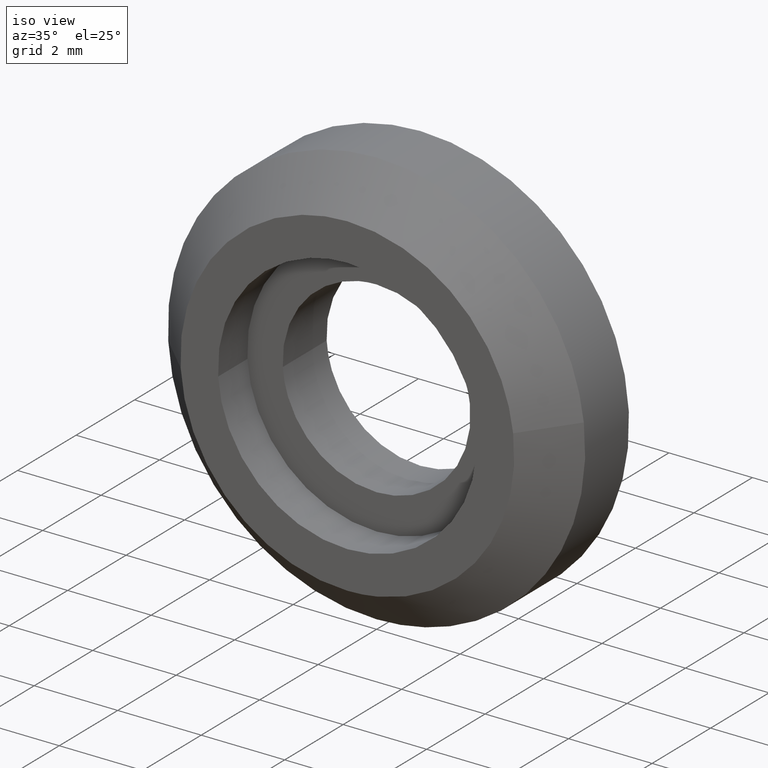
[diagram: clean part render]
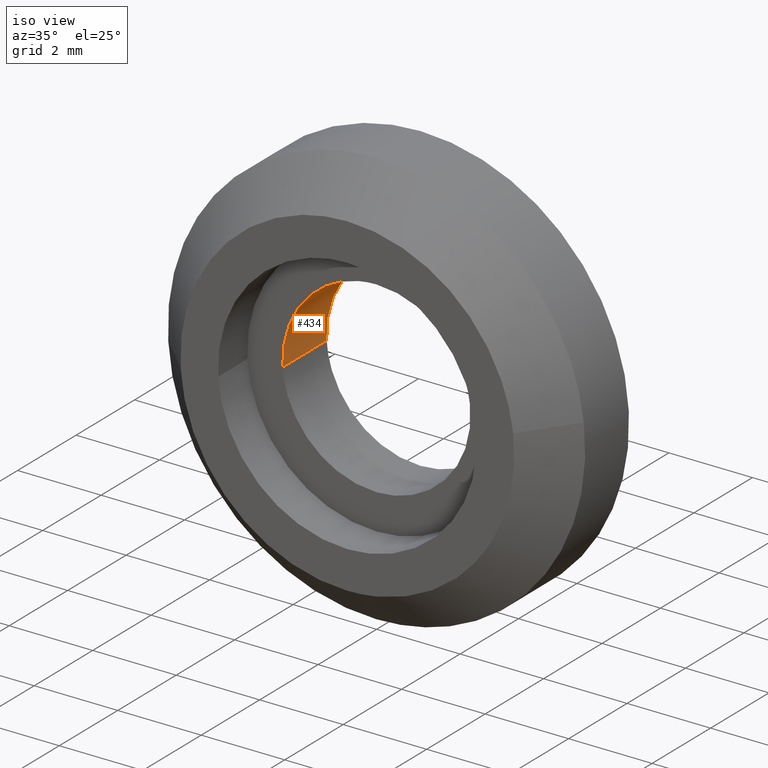
[diagram: same view with one face highlighted and labeled with its STEP entity id]
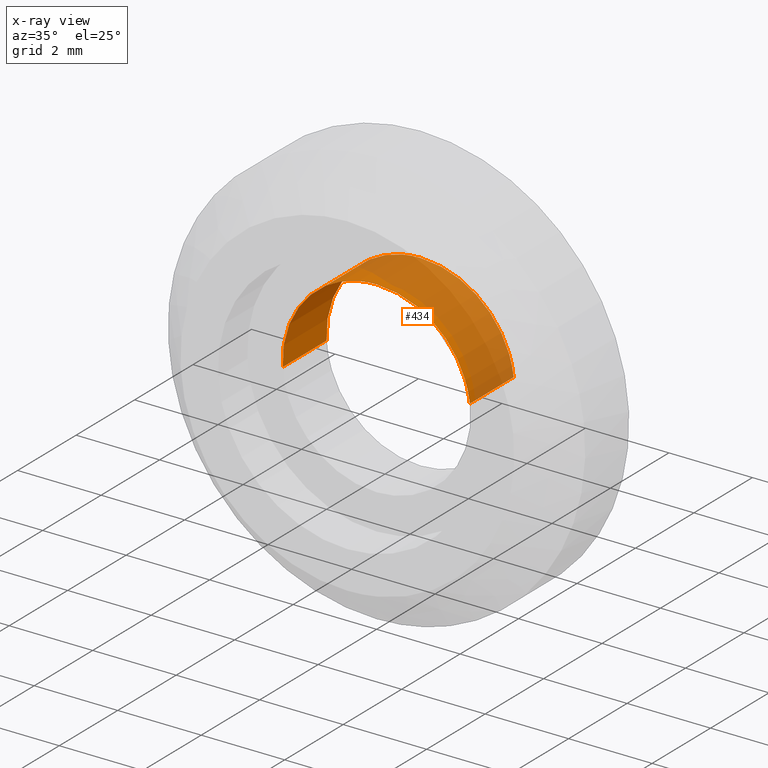
[diagram: x-ray of the same camera — body ghosted, the highlighted face saturated]
A machine part, iso view. The second image highlights one B-rep face of the part: STEP entity #434.
The next image is the same camera in x-ray: the body ghosted, the highlighted face saturated — about 66% of this face is hidden behind the body in this view.
In plain terms, the highlighted face is a freeform B-spline surface patch.
Its self-contained STEP definition (entity closure, byte-faithful):
#271=CARTESIAN_POINT('',(2.234271807760320,1.499999999999976,0.265573886211392));
#272=VERTEX_POINT('',#271);
#290=CARTESIAN_POINT('',(-2.245803520840400,1.499999999999997,-0.137355545091388));
#291=VERTEX_POINT('',#290);
#305=CARTESIAN_POINT('',(-2.245803518071988,3.469447E-017,-0.137355590356938));
#306=VERTEX_POINT('',#305);
#307=CARTESIAN_POINT('',(-2.245803518071988,3.469447E-017,-0.137355590356938));
#308=CARTESIAN_POINT('',(-2.245803520840400,1.499999999999997,-0.137355545091388));
#309=QUASI_UNIFORM_CURVE('',1,(#307,#308),.UNSPECIFIED.,.F.,.U.);
#310=EDGE_CURVE('',#306,#291,#309,.T.);
#327=CARTESIAN_POINT('',(2.234271803154819,3.194357E-017,0.265573924957907));
#328=VERTEX_POINT('',#327);
#344=CARTESIAN_POINT('',(2.234271803154819,3.194357E-017,0.265573924957907));
#345=CARTESIAN_POINT('',(2.234271807760320,1.499999999999976,0.265573886211392));
#346=QUASI_UNIFORM_CURVE('',1,(#344,#345),.UNSPECIFIED.,.F.,.U.);
#347=EDGE_CURVE('',#328,#272,#346,.T.);
#352=CARTESIAN_POINT('',(-2.245803296449200,-0.037500000000000,-0.137359213953428));
#353=CARTESIAN_POINT('',(-2.383162510402629,-0.037500000000000,2.108444082495772));
#354=CARTESIAN_POINT('',(-0.137359213953428,-0.037500000000000,2.245803296449200));
#355=CARTESIAN_POINT('',(1.983472854388877,-0.037500000000000,2.375518942648186));
#356=CARTESIAN_POINT('',(2.234271434318250,-0.037500000000000,0.265577027977707));
#357=CARTESIAN_POINT('',(-2.245803296449200,1.538437500000000,-0.137359213953428));
#358=CARTESIAN_POINT('',(-2.383162510402629,1.538437500000001,2.108444082495772));
#359=CARTESIAN_POINT('',(-0.137359213953428,1.538437500000000,2.245803296449200));
#360=CARTESIAN_POINT('',(1.983472854388877,1.538437500000000,2.375518942648186));
#361=CARTESIAN_POINT('',(2.234271434318250,1.538437500000000,0.265577027977707));
#369=(BOUNDED_SURFACE()B_SPLINE_SURFACE(2,1,((#352,#357),(#353,#358),(#354,#359),(#355,#360),(#356,#361)),.UNSPECIFIED.,.F.,.F.,.U.)B_SPLINE_SURFACE_WITH_KNOTS((3,2,3),(2,2),(0.0,3.727922061357854,7.306727240261394),(0.0,1.0),.UNSPECIFIED.)GEOMETRIC_REPRESENTATION_ITEM()RATIONAL_B_SPLINE_SURFACE(((1.0,1.0),(0.707106781186548,0.707106781186548),(1.0,1.0),(0.718822509939086,0.718822509939086),(0.977505800795127,0.977505800795127)))REPRESENTATION_ITEM('')SURFACE());
#370=CARTESIAN_POINT('',(0.0,1.500000000000000,2.250000000000000));
#371=VERTEX_POINT('',#370);
#372=CARTESIAN_POINT('',(0.0,1.500000000000000,2.250000000000000));
#373=CARTESIAN_POINT('',(1.998395513254554,1.500000000000001,2.250000000000000));
#374=CARTESIAN_POINT('',(2.234271807760319,1.499999999999977,0.265573886211392));
#382=(BOUNDED_CURVE()B_SPLINE_CURVE(2,(#372,#373,#374),.UNSPECIFIED.,.F.,.U.)B_SPLINE_CURVE_WITH_KNOTS((3,3),(0.0,0.229562711163027),.UNSPECIFIED.)CURVE()GEOMETRIC_REPRESENTATION_ITEM()RATIONAL_B_SPLINE_CURVE((1.0,0.731050554431672,0.956027219987011))REPRESENTATION_ITEM(''));
#383=EDGE_CURVE('',#371,#272,#382,.T.);
#384=ORIENTED_EDGE('',*,*,#383,.T.);
#385=ORIENTED_EDGE('',*,*,#347,.F.);
#386=CARTESIAN_POINT('',(0.0,0.0,2.250000000000000));
#387=VERTEX_POINT('',#386);
#388=CARTESIAN_POINT('',(0.0,0.0,2.250000000000000));
#389=CARTESIAN_POINT('',(1.998395478354626,0.0,2.250000000000001));
#390=CARTESIAN_POINT('',(2.234271803154818,3.194357E-017,0.265573924957907));
#398=(BOUNDED_CURVE()B_SPLINE_CURVE(2,(#388,#389,#390),.UNSPECIFIED.,.F.,.U.)B_SPLINE_CURVE_WITH_KNOTS((3,3),(0.0,0.229562708232189),.UNSPECIFIED.)CURVE()GEOMETRIC_REPRESENTATION_ITEM()RATIONAL_B_SPLINE_CURVE((1.0,0.731050557865363,0.956027214242435))REPRESENTATION_ITEM(''));
#399=EDGE_CURVE('',#387,#328,#398,.T.);
#400=ORIENTED_EDGE('',*,*,#399,.F.);
#401=CARTESIAN_POINT('',(-2.245803518071988,3.469447E-017,-0.137355590356937));
#402=CARTESIAN_POINT('',(-2.250000000000000,0.0,-0.068741900543697));
#403=CARTESIAN_POINT('',(-2.250000000000000,0.0,0.0));
#404=CARTESIAN_POINT('',(-2.250000000000000,0.0,2.250000000000000));
#405=CARTESIAN_POINT('',(0.0,0.0,2.250000000000000));
#413=(BOUNDED_CURVE()B_SPLINE_CURVE(2,(#401,#402,#403,#404,#405),.UNSPECIFIED.,.F.,.U.)B_SPLINE_CURVE_WITH_KNOTS((3,2,3),(0.739333240645724,0.750000000000000,1.0),.UNSPECIFIED.)CURVE()GEOMETRIC_REPRESENTATION_ITEM()RATIONAL_B_SPLINE_CURVE((0.976072638346172,0.987503114073670,1.0,0.707106781186547,1.0))REPRESENTATION_ITEM(''));
#414=EDGE_CURVE('',#306,#387,#413,.T.);
#415=ORIENTED_EDGE('',*,*,#414,.F.);
#416=ORIENTED_EDGE('',*,*,#310,.T.);
#417=CARTESIAN_POINT('',(-2.245803520840400,1.499999999999997,-0.137355545091388));
#418=CARTESIAN_POINT('',(-2.250000000000000,1.500000000000000,-0.068741877847468));
#419=CARTESIAN_POINT('',(-2.250000000000000,1.500000000000000,0.0));
#420=CARTESIAN_POINT('',(-2.250000000000000,1.500000000000000,2.250000000000000));
#421=CARTESIAN_POINT('',(0.0,1.500000000000000,2.250000000000000));
#429=(BOUNDED_CURVE()B_SPLINE_CURVE(2,(#417,#418,#419,#420,#421),.UNSPECIFIED.,.F.,.U.)B_SPLINE_CURVE_WITH_KNOTS((3,2,3),(0.739333244123512,0.750000000000000,1.0),.UNSPECIFIED.)CURVE()GEOMETRIC_REPRESENTATION_ITEM()RATIONAL_B_SPLINE_CURVE((0.976072645799753,0.987503118148153,1.0,0.707106781186547,1.0))REPRESENTATION_ITEM(''));
#430=EDGE_CURVE('',#291,#371,#429,.T.);
#431=ORIENTED_EDGE('',*,*,#430,.T.);
#432=EDGE_LOOP('',(#384,#385,#400,#415,#416,#431));
#433=FACE_OUTER_BOUND('',#432,.T.);
#434=ADVANCED_FACE('',(#433),#369,.F.);